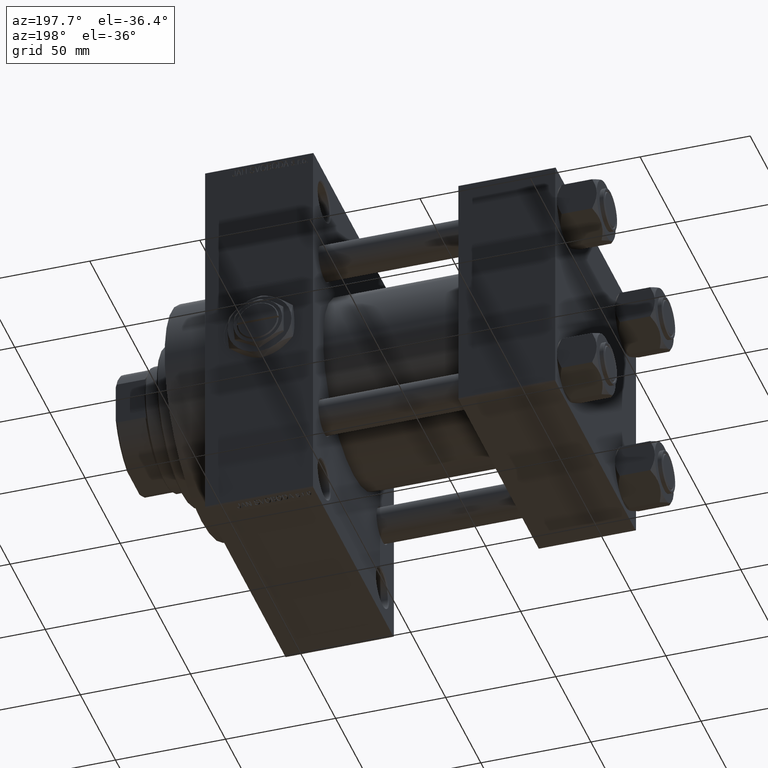
[diagram: clean part render]
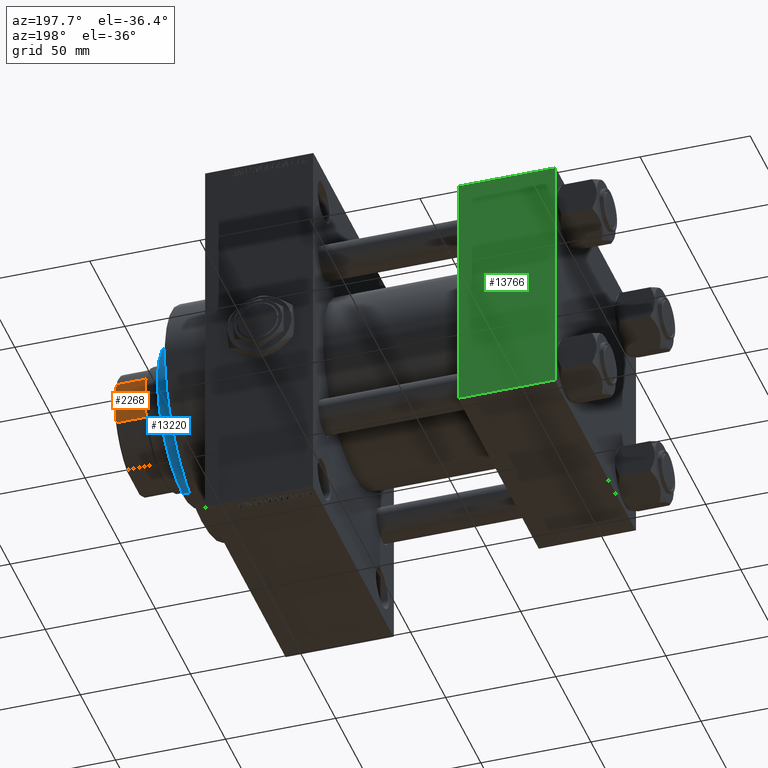
[diagram: same view with three faces highlighted in distinct colors, each labeled with its STEP entity id]
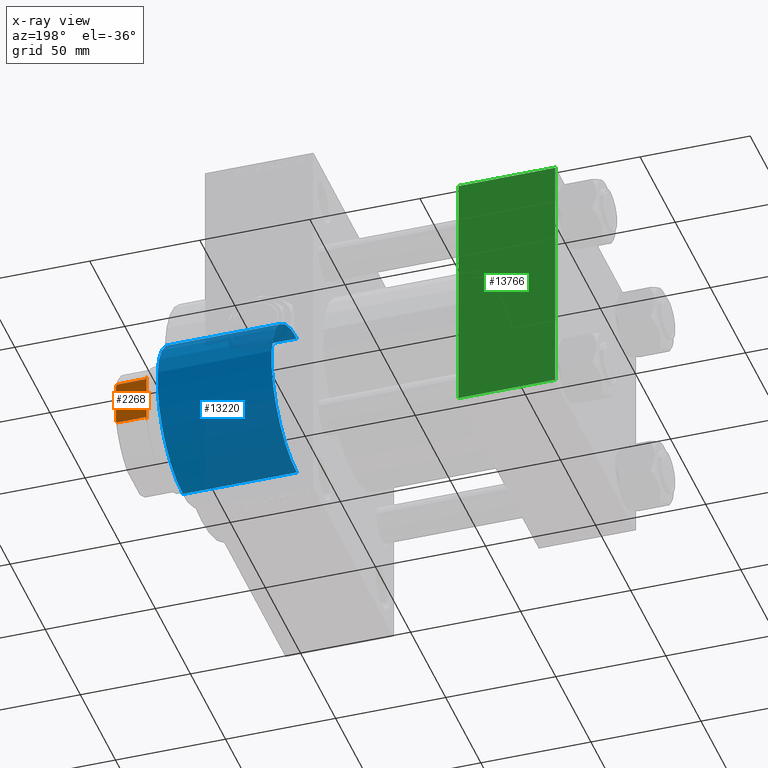
[diagram: x-ray of the same camera — body ghosted, the three highlighted faces saturated]
A machine part, auxiliary view with three faces highlighted in distinct colors.
The next image is the same camera in x-ray (body ghosted, the three faces saturated) — at least one of them is partly hidden behind the body in this view.
Their STEP definitions:

[orange] entity #2268 — the highlighted planar face has unit normal (0, -1, -0).
#83 = EDGE_CURVE ( 'NONE', #40524, #4929, #33581, .T. ) ;
#209 = CARTESIAN_POINT ( 'NONE',  ( -25.00000000000000711, 25.00000000000000000, 166.0000000000000000 ) ) ;
#257 = EDGE_CURVE ( 'NONE', #4929, #32994, #42271, .T. ) ;
#271 = CARTESIAN_POINT ( 'NONE',  ( -25.00000000000000711, 11.45643923738957248, 152.0000000000000000 ) ) ;
#1002 = CARTESIAN_POINT ( 'NONE',  ( -25.00000000000000711, -10.61981162664454992, 152.3406943174118453 ) ) ;
#1027 = CARTESIAN_POINT ( 'NONE',  ( -25.00000000000000711, 10.19803902718556188, 152.5000000000000284 ) ) ;
#1778 = VERTEX_POINT ( 'NONE', #34452 ) ;
#2268 = ADVANCED_FACE ( 'NONE', ( #30514 ), #7161, .F. ) ;
#2583 = VECTOR ( 'NONE', #45780, 1000.000000000000000 ) ;
#4504 = CARTESIAN_POINT ( 'NONE',  ( -25.00000000000000355, 8.789197915623471857, 166.0000000000000000 ) ) ;
#4708 = CARTESIAN_POINT ( 'NONE',  ( -25.00000000000000711, -10.19803902718555477, 152.5000000000000284 ) ) ;
#4725 = CARTESIAN_POINT ( 'NONE',  ( -25.00000000000000711, -11.03921204036254089, 152.1738159283973459 ) ) ;
#4929 = VERTEX_POINT ( 'NONE', #12355 ) ;
#5041 = CARTESIAN_POINT ( 'NONE',  ( -25.00000000000000711, -9.731776668926015006, 165.6761096935717887 ) ) ;
#5926 = CARTESIAN_POINT ( 'NONE',  ( -25.00000000000000711, 10.61970411846363760, 152.3407349238053712 ) ) ;
#5990 = DIRECTION ( 'NONE',  ( -0.000000000000000000, -0.000000000000000000, 1.000000000000000000 ) ) ;
#7161 = PLANE ( 'NONE',  #37430 ) ;
#7428 = ORIENTED_EDGE ( 'NONE', *, *, #43446, .T. ) ;
#8477 = CARTESIAN_POINT ( 'NONE',  ( -25.00000000000000711, 10.19803902718555833, 165.5000000000000000 ) ) ;
#9389 = DIRECTION ( 'NONE',  ( 2.081668171172168513E-16, -1.000000000000000000, 0.000000000000000000 ) ) ;
#9878 = LINE ( 'NONE', #36463, #26840 ) ;
#10029 = ORIENTED_EDGE ( 'NONE', *, *, #10824, .F. ) ;
#10824 = EDGE_CURVE ( 'NONE', #34654, #31101, #9878, .T. ) ;
#10922 = CARTESIAN_POINT ( 'NONE',  ( -25.00000000000000711, -10.19803902718555477, 165.5000000000000000 ) ) ;
#12097 = VERTEX_POINT ( 'NONE', #10922 ) ;
#12355 = CARTESIAN_POINT ( 'NONE',  ( -25.00000000000000711, -11.45643923738958492, 152.0000000000000000 ) ) ;
#12715 = CARTESIAN_POINT ( 'NONE',  ( -25.00000000000000711, -10.19803902718555477, -0.001000000000001000089 ) ) ;
#12947 = CARTESIAN_POINT ( 'NONE',  ( -25.00000000000000355, 9.731776668926009677, 165.6761096935717887 ) ) ;
#13158 = VECTOR ( 'NONE', #5990, 1000.000000000000000 ) ;
#13240 = CARTESIAN_POINT ( 'NONE',  ( -24.99999999999999645, -8.789197915623482515, 166.0000000000000000 ) ) ;
#13881 = CARTESIAN_POINT ( 'NONE',  ( -25.00000000000000355, 8.789197915623471857, 166.0000000000000000 ) ) ;
#15160 = VERTEX_POINT ( 'NONE', #1027 ) ;
#16517 = ORIENTED_EDGE ( 'NONE', *, *, #35211, .F. ) ;
#16717 = CARTESIAN_POINT ( 'NONE',  ( -25.00000000000000000, -9.262276112429429276, 165.8430951735360850 ) ) ;
#16871 = CARTESIAN_POINT ( 'NONE',  ( -25.00000000000000711, 11.45643923738957248, 152.0000000000000000 ) ) ;
#18549 = B_SPLINE_CURVE_WITH_KNOTS ( 'NONE', 3,
 ( #21069, #5926, #36238, #16871 ),
 .UNSPECIFIED., .F., .F.,
 ( 4, 4 ),
 ( 0.1247771908928544254, 0.1261173750731113541 ),
 .UNSPECIFIED. ) ;
#19123 = VECTOR ( 'NONE', #25125, 1000.000000000000000 ) ;
#20154 = LINE ( 'NONE', #12715, #2583 ) ;
#20205 = EDGE_CURVE ( 'NONE', #15160, #40524, #18549, .T. ) ;
#21069 = CARTESIAN_POINT ( 'NONE',  ( -25.00000000000000711, 10.19803902718556188, 152.5000000000000284 ) ) ;
#22304 = DIRECTION ( 'NONE',  ( -2.081668171172168513E-16, 1.000000000000000000, 0.000000000000000000 ) ) ;
#23698 = B_SPLINE_CURVE_WITH_KNOTS ( 'NONE', 3,
 ( #4504, #46994, #12947, #8477 ),
 .UNSPECIFIED., .F., .F.,
 ( 4, 4 ),
 ( 1.734723475976807094E-18, 0.001494935877430032464 ),
 .UNSPECIFIED. ) ;
#23820 = EDGE_CURVE ( 'NONE', #32994, #12097, #20154, .T. ) ;
#24120 = CARTESIAN_POINT ( 'NONE',  ( -25.00000000000000711, 10.19803902718555833, -0.001000000000001000089 ) ) ;
#25125 = DIRECTION ( 'NONE',  ( 2.081668171172168513E-16, -1.000000000000000000, 0.000000000000000000 ) ) ;
#25797 = ORIENTED_EDGE ( 'NONE', *, *, #257, .T. ) ;
#26807 = EDGE_CURVE ( 'NONE', #12097, #31101, #36451, .T. ) ;
#26840 = VECTOR ( 'NONE', #9389, 1000.000000000000000 ) ;
#30086 = CARTESIAN_POINT ( 'NONE',  ( -25.00000000000000711, -10.19803902718555477, 152.5000000000000284 ) ) ;
#30196 = ORIENTED_EDGE ( 'NONE', *, *, #83, .T. ) ;
#30514 = FACE_OUTER_BOUND ( 'NONE', #36299, .T. ) ;
#31101 = VERTEX_POINT ( 'NONE', #45284 ) ;
#32994 = VERTEX_POINT ( 'NONE', #4708 ) ;
#33084 = CARTESIAN_POINT ( 'NONE',  ( -25.00000000000000711, 25.00000000000000000, 152.0000000000000000 ) ) ;
#33581 = LINE ( 'NONE', #33084, #19123 ) ;
#34452 = CARTESIAN_POINT ( 'NONE',  ( -25.00000000000000711, 10.19803902718555833, 165.5000000000000000 ) ) ;
#34598 = ORIENTED_EDGE ( 'NONE', *, *, #26807, .T. ) ;
#34654 = VERTEX_POINT ( 'NONE', #13881 ) ;
#35211 = EDGE_CURVE ( 'NONE', #15160, #1778, #40031, .T. ) ;
#36238 = CARTESIAN_POINT ( 'NONE',  ( -25.00000000000000711, 11.03910869777047665, 152.1738589806928417 ) ) ;
#36299 = EDGE_LOOP ( 'NONE', ( #38078, #34598, #10029, #7428, #16517, #41934, #30196, #25797 ) ) ;
#36451 = B_SPLINE_CURVE_WITH_KNOTS ( 'NONE', 3,
 ( #39079, #5041, #16717, #13240 ),
 .UNSPECIFIED., .F., .F.,
 ( 4, 4 ),
 ( 0.000000000000000000, 0.001494935877430018153 ),
 .UNSPECIFIED. ) ;
#36463 = CARTESIAN_POINT ( 'NONE',  ( -25.00000000000000711, 25.00000000000000000, 166.0000000000000000 ) ) ;
#37430 = AXIS2_PLACEMENT_3D ( 'NONE', #209, #37973, #22304 ) ;
#37973 = DIRECTION ( 'NONE',  ( 1.000000000000000000, 2.081668171172168513E-16, -0.000000000000000000 ) ) ;
#38078 = ORIENTED_EDGE ( 'NONE', *, *, #23820, .T. ) ;
#38766 = CARTESIAN_POINT ( 'NONE',  ( -25.00000000000000711, -11.45643923738958492, 152.0000000000000000 ) ) ;
#39079 = CARTESIAN_POINT ( 'NONE',  ( -25.00000000000000711, -10.19803902718555477, 165.5000000000000000 ) ) ;
#40031 = LINE ( 'NONE', #24120, #13158 ) ;
#40524 = VERTEX_POINT ( 'NONE', #271 ) ;
#41934 = ORIENTED_EDGE ( 'NONE', *, *, #20205, .T. ) ;
#42271 = B_SPLINE_CURVE_WITH_KNOTS ( 'NONE', 3,
 ( #38766, #4725, #1002, #30086 ),
 .UNSPECIFIED., .F., .F.,
 ( 4, 4 ),
 ( 0.1512937174508678095, 0.1525988942206353005 ),
 .UNSPECIFIED. ) ;
#43446 = EDGE_CURVE ( 'NONE', #34654, #1778, #23698, .T. ) ;
#45284 = CARTESIAN_POINT ( 'NONE',  ( -24.99999999999999645, -8.789197915623482515, 166.0000000000000000 ) ) ;
#45780 = DIRECTION ( 'NONE',  ( -0.000000000000000000, -0.000000000000000000, 1.000000000000000000 ) ) ;
#46994 = CARTESIAN_POINT ( 'NONE',  ( -25.00000000000000355, 9.262276112429415065, 165.8430951735360850 ) ) ;

[blue] entity #13220 — the highlighted cylindrical surface (partial cylindrical patch) has radius 36 mm, axis along (-1, -0, 0).
#282 = CYLINDRICAL_SURFACE ( 'NONE', #7093, 36.00000000000000000 ) ;
#336 = ORIENTED_EDGE ( 'NONE', *, *, #27539, .F. ) ;
#358 = VECTOR ( 'NONE', #42338, 1000.000000000000000 ) ;
#1018 = VERTEX_POINT ( 'NONE', #36586 ) ;
#1728 = CARTESIAN_POINT ( 'NONE',  ( 36.00000000000000000, 4.408728476930470856E-15, 43.25999999999999801 ) ) ;
#2072 = EDGE_CURVE ( 'NONE', #12005, #45147, #12675, .T. ) ;
#2575 = EDGE_LOOP ( 'NONE', ( #48161, #42004, #26295, #336 ) ) ;
#6783 = CIRCLE ( 'NONE', #41709, 36.00000000000000000 ) ;
#7093 = AXIS2_PLACEMENT_3D ( 'NONE', #11223, #26603, #27092 ) ;
#8645 = EDGE_CURVE ( 'NONE', #1018, #12005, #6783, .T. ) ;
#8927 = CARTESIAN_POINT ( 'NONE',  ( 36.00000000000000000, 4.408728476930470856E-15, 0.000000000000000000 ) ) ;
#11223 = CARTESIAN_POINT ( 'NONE',  ( 0.000000000000000000, 0.000000000000000000, 43.25999999999999801 ) ) ;
#12005 = VERTEX_POINT ( 'NONE', #29050 ) ;
#12675 = LINE ( 'NONE', #1728, #40621 ) ;
#13220 = ADVANCED_FACE ( 'NONE', ( #29840 ), #282, .T. ) ;
#14946 = DIRECTION ( 'NONE',  ( 1.000000000000000000, 0.000000000000000000, 0.000000000000000000 ) ) ;
#16819 = CIRCLE ( 'NONE', #22362, 36.00000000000000000 ) ;
#16888 = DIRECTION ( 'NONE',  ( -0.000000000000000000, -0.000000000000000000, -1.000000000000000000 ) ) ;
#19223 = LINE ( 'NONE', #19704, #358 ) ;
#19704 = CARTESIAN_POINT ( 'NONE',  ( -36.00000000000000000, 0.000000000000000000, 43.25999999999999801 ) ) ;
#20266 = DIRECTION ( 'NONE',  ( 0.000000000000000000, 0.000000000000000000, 1.000000000000000000 ) ) ;
#21100 = VERTEX_POINT ( 'NONE', #34359 ) ;
#22159 = EDGE_CURVE ( 'NONE', #45147, #21100, #16819, .T. ) ;
#22362 = AXIS2_PLACEMENT_3D ( 'NONE', #46620, #20266, #39159 ) ;
#25376 = CARTESIAN_POINT ( 'NONE',  ( 0.000000000000000000, 0.000000000000000000, 51.76000000000000512 ) ) ;
#26295 = ORIENTED_EDGE ( 'NONE', *, *, #22159, .T. ) ;
#26603 = DIRECTION ( 'NONE',  ( -0.000000000000000000, -0.000000000000000000, -1.000000000000000000 ) ) ;
#27092 = DIRECTION ( 'NONE',  ( -1.000000000000000000, 0.000000000000000000, 0.000000000000000000 ) ) ;
#27539 = EDGE_CURVE ( 'NONE', #1018, #21100, #19223, .T. ) ;
#29050 = CARTESIAN_POINT ( 'NONE',  ( 36.00000000000000000, 4.408728476930470856E-15, 51.76000000000000512 ) ) ;
#29840 = FACE_OUTER_BOUND ( 'NONE', #2575, .T. ) ;
#34359 = CARTESIAN_POINT ( 'NONE',  ( -36.00000000000000000, 0.000000000000000000, 0.000000000000000000 ) ) ;
#36586 = CARTESIAN_POINT ( 'NONE',  ( -36.00000000000000000, 0.000000000000000000, 51.76000000000000512 ) ) ;
#39159 = DIRECTION ( 'NONE',  ( 1.000000000000000000, 0.000000000000000000, 0.000000000000000000 ) ) ;
#40621 = VECTOR ( 'NONE', #16888, 1000.000000000000000 ) ;
#41709 = AXIS2_PLACEMENT_3D ( 'NONE', #25376, #48998, #14946 ) ;
#42004 = ORIENTED_EDGE ( 'NONE', *, *, #2072, .T. ) ;
#42338 = DIRECTION ( 'NONE',  ( -0.000000000000000000, -0.000000000000000000, -1.000000000000000000 ) ) ;
#45147 = VERTEX_POINT ( 'NONE', #8927 ) ;
#46620 = CARTESIAN_POINT ( 'NONE',  ( 0.000000000000000000, 0.000000000000000000, 0.000000000000000000 ) ) ;
#48161 = ORIENTED_EDGE ( 'NONE', *, *, #8645, .T. ) ;
#48998 = DIRECTION ( 'NONE',  ( 0.000000000000000000, 0.000000000000000000, -1.000000000000000000 ) ) ;

[green] entity #13766 — the highlighted planar face has unit normal (0, 1, 0).
#54 = CARTESIAN_POINT ( 'NONE',  ( 44.00000000000000000, 57.50000000000000000, -57.00000000000000000 ) ) ;
#3969 = VECTOR ( 'NONE', #45736, 1000.000000000000000 ) ;
#4180 = EDGE_CURVE ( 'NONE', #29920, #13466, #17881, .T. ) ;
#4239 = CARTESIAN_POINT ( 'NONE',  ( 0.000000000000000000, 57.50000000000000000, 57.50000000000001421 ) ) ;
#5794 = CARTESIAN_POINT ( 'NONE',  ( 44.00000000000000000, 57.50000000000000000, 57.00000000000004263 ) ) ;
#7417 = ORIENTED_EDGE ( 'NONE', *, *, #12480, .T. ) ;
#8841 = CARTESIAN_POINT ( 'NONE',  ( 44.00000000000000000, 57.50000000000000000, 57.50000000000001421 ) ) ;
#9979 = ORIENTED_EDGE ( 'NONE', *, *, #4180, .T. ) ;
#11519 = EDGE_CURVE ( 'NONE', #46770, #29920, #35612, .T. ) ;
#12480 = EDGE_CURVE ( 'NONE', #13466, #31324, #34093, .T. ) ;
#13466 = VERTEX_POINT ( 'NONE', #39757 ) ;
#13766 = ADVANCED_FACE ( 'NONE', ( #15816 ), #27705, .T. ) ;
#14642 = CARTESIAN_POINT ( 'NONE',  ( 44.00000000000000000, 57.50000000000000000, 57.50000000000001421 ) ) ;
#15217 = DIRECTION ( 'NONE',  ( -1.000000000000000000, 0.000000000000000000, 0.000000000000000000 ) ) ;
#15816 = FACE_OUTER_BOUND ( 'NONE', #43407, .T. ) ;
#16304 = DIRECTION ( 'NONE',  ( -0.000000000000000000, 1.000000000000000000, 0.000000000000000000 ) ) ;
#17881 = LINE ( 'NONE', #14642, #43078 ) ;
#18159 = VECTOR ( 'NONE', #46808, 1000.000000000000000 ) ;
#19599 = CARTESIAN_POINT ( 'NONE',  ( 0.000000000000000000, 57.50000000000000000, -56.99999999999997158 ) ) ;
#27220 = DIRECTION ( 'NONE',  ( 0.000000000000000000, -0.000000000000000000, 1.000000000000000000 ) ) ;
#27705 = PLANE ( 'NONE',  #27760 ) ;
#27760 = AXIS2_PLACEMENT_3D ( 'NONE', #8841, #16304, #27220 ) ;
#29316 = ORIENTED_EDGE ( 'NONE', *, *, #11519, .T. ) ;
#29782 = DIRECTION ( 'NONE',  ( 0.000000000000000000, 0.000000000000000000, -1.000000000000000000 ) ) ;
#29920 = VERTEX_POINT ( 'NONE', #41717 ) ;
#31324 = VERTEX_POINT ( 'NONE', #19599 ) ;
#31898 = CARTESIAN_POINT ( 'NONE',  ( 0.000000000000000000, 57.50000000000000000, 57.00000000000004263 ) ) ;
#32453 = VECTOR ( 'NONE', #15217, 1000.000000000000000 ) ;
#34093 = LINE ( 'NONE', #54, #32453 ) ;
#34549 = LINE ( 'NONE', #4239, #3969 ) ;
#35612 = LINE ( 'NONE', #5794, #18159 ) ;
#39757 = CARTESIAN_POINT ( 'NONE',  ( 44.00000000000000000, 57.50000000000000000, -56.99999999999997158 ) ) ;
#41717 = CARTESIAN_POINT ( 'NONE',  ( 44.00000000000000000, 57.50000000000000000, 57.00000000000004263 ) ) ;
#42235 = ORIENTED_EDGE ( 'NONE', *, *, #49176, .F. ) ;
#43078 = VECTOR ( 'NONE', #29782, 1000.000000000000000 ) ;
#43407 = EDGE_LOOP ( 'NONE', ( #9979, #7417, #42235, #29316 ) ) ;
#45736 = DIRECTION ( 'NONE',  ( 0.000000000000000000, 0.000000000000000000, -1.000000000000000000 ) ) ;
#46770 = VERTEX_POINT ( 'NONE', #31898 ) ;
#46808 = DIRECTION ( 'NONE',  ( 1.000000000000000000, 0.000000000000000000, 0.000000000000000000 ) ) ;
#49176 = EDGE_CURVE ( 'NONE', #46770, #31324, #34549, .T. ) ;